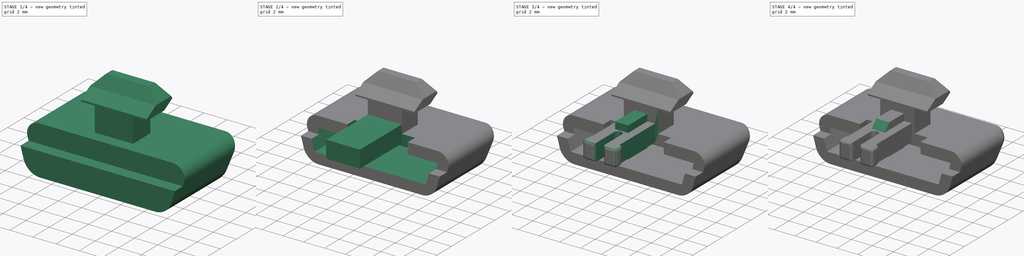
[diagram: build sequence overview — one tinted view per stage of 4, left to right]
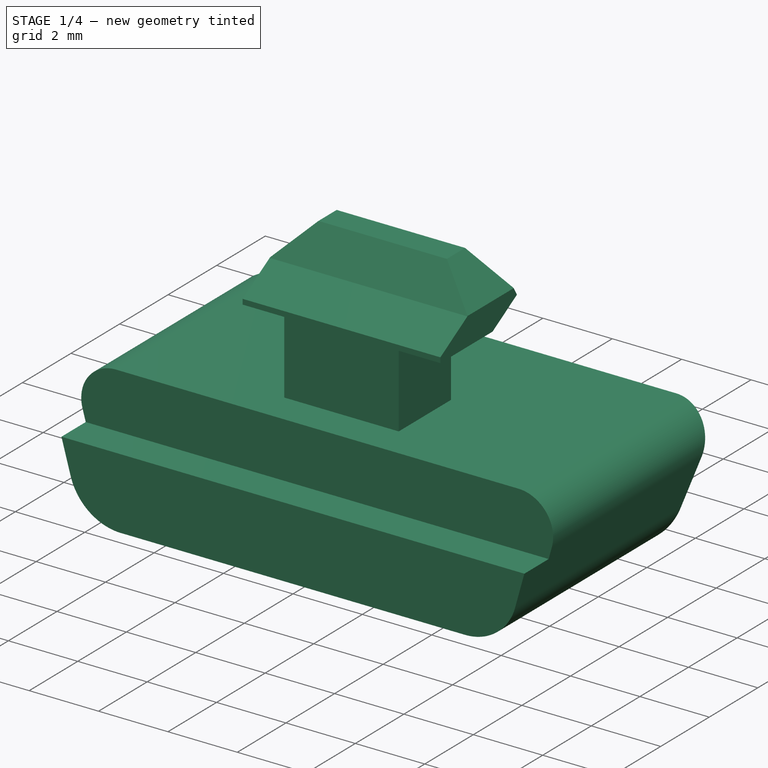
[diagram: stage 1 of 4 — iso view after this stage's code; geometry added in this stage tinted green]
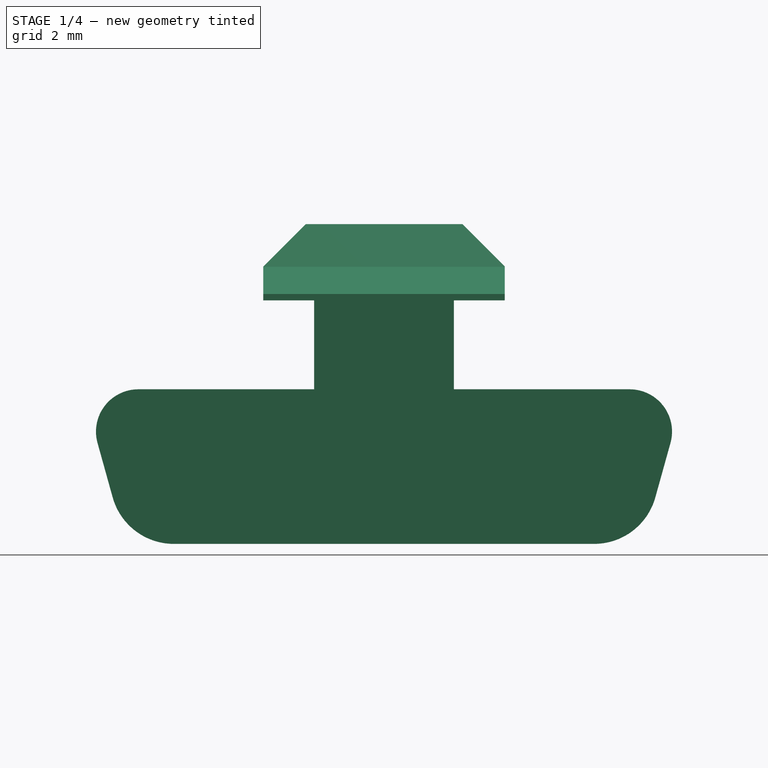
[diagram: stage 1 of 4 — front view after this stage's code; geometry added in this stage tinted green]
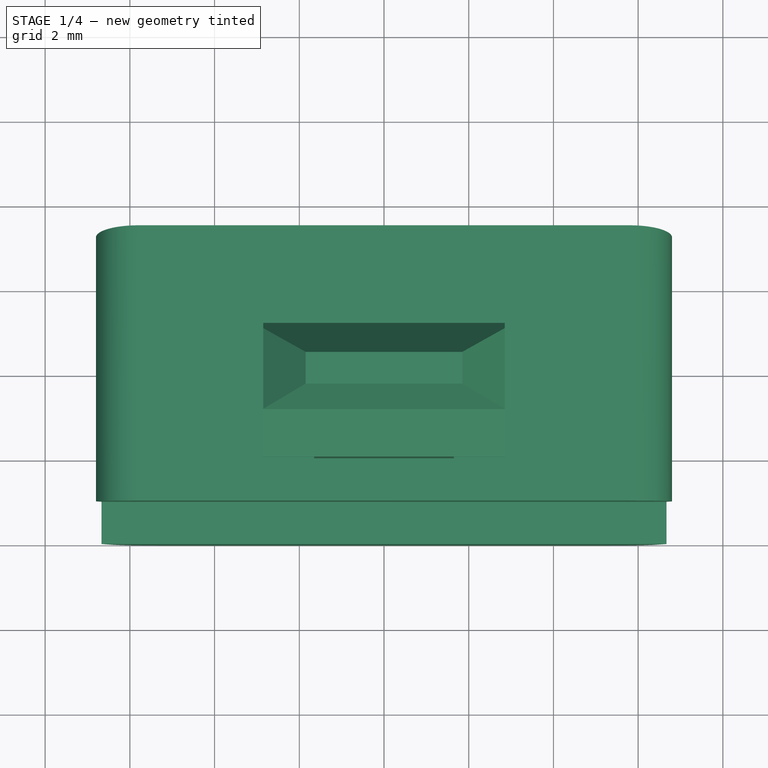
[diagram: stage 1 of 4 — top view after this stage's code; geometry added in this stage tinted green]
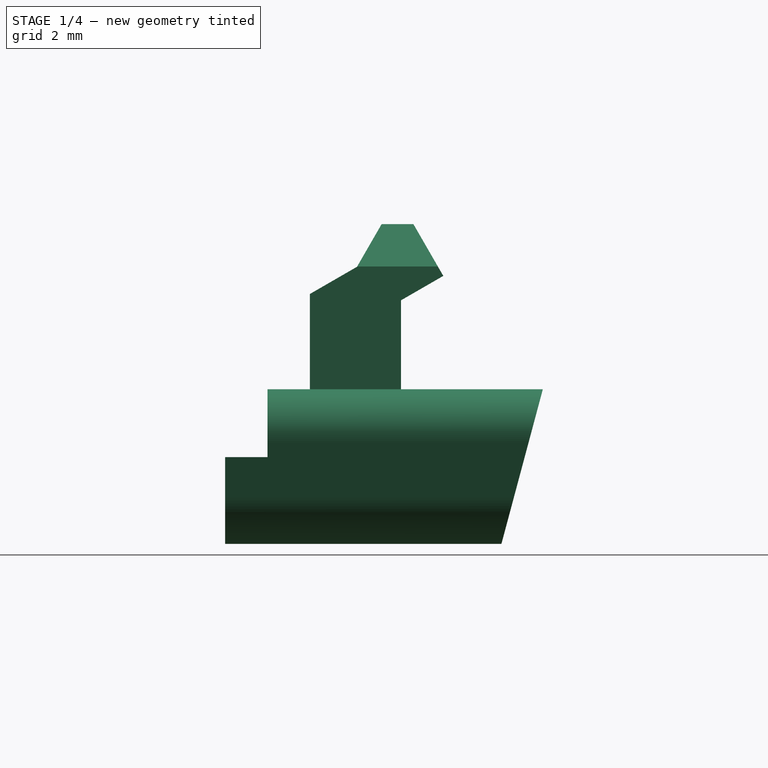
[diagram: stage 1 of 4 — right view after this stage's code; geometry added in this stage tinted green]
FCSTD DOCUMENT  (FreeCAD 1.0R39109 (Git))
Label: Philips 3000
License: All rights reserved
LicenseURL: http://en.wikipedia.org/wiki/All_rights_reserved
objects: Sketcher::SketchObject×7, PartDesign::Pocket×4, PartDesign::Pad×3, PartDesign::Fillet×2, PartDesign::Chamfer×1, PartDesign::Body×1
note: 45 computed .brp shape members not serialized (recipe doc carries the construction recipe); baked Part::Feature solids carry a one-line shape summary decoded from their .brp

FEATURE [Sketcher::SketchObject] Sketch
  ArcFitTolerance = 1e-06
  AttachmentSupport = -> [XZ_Plane]
  FullyConstrained = true
  MakeInternals = false
  MapMode = 5
  Placement = pos=(0,0,0) rot=(1,0,0;1.5708rad)
  sketch-geometry (24):
    g0: LineSegment StartX=-1.65 StartY=0 StartZ=0 EndX=-1.65 EndY=2.1 EndZ=0
    g1: LineSegment StartX=-1.65 StartY=2.1 StartZ=0 EndX=-2.85 EndY=2.1 EndZ=0
    g2: LineSegment StartX=-2.85 StartY=2.1 StartZ=0 EndX=-2.85 EndY=2.9 EndZ=0
    g3: LineSegment StartX=-2.85 StartY=2.9 StartZ=0 EndX=-1.85 EndY=3.9 EndZ=0
    g4: LineSegment StartX=-1.85 StartY=3.9 StartZ=0 EndX=1.85 EndY=3.9 EndZ=0
    g5: LineSegment StartX=1.85 StartY=3.9 StartZ=0 EndX=2.85 EndY=2.9 EndZ=0
    g6: LineSegment StartX=2.85 StartY=2.9 StartZ=0 EndX=2.85 EndY=2.1 EndZ=0
    g7: LineSegment StartX=2.85 StartY=2.1 StartZ=0 EndX=1.65 EndY=2.1 EndZ=0
    g8: LineSegment StartX=1.65 StartY=2.1 StartZ=0 EndX=1.65 EndY=0 EndZ=0
    g9: LineSegment StartX=1.65 StartY=0 StartZ=0 EndX=5.8 EndY=0 EndZ=0
    g10: LineSegment StartX=6.76333 StartY=-1.2683 StartZ=0 EndX=6.40568 EndY=-2.55245 EndZ=0
    g11: LineSegment StartX=4.96068 StartY=-3.65 StartZ=0 EndX=-4.96068 EndY=-3.65 EndZ=0
    g12: LineSegment StartX=-6.40568 StartY=-2.55245 StartZ=0 EndX=-6.76333 EndY=-1.2683 EndZ=0
    g13: LineSegment StartX=-5.8 StartY=0 StartZ=0 EndX=-1.65 EndY=0 EndZ=0
    g14: ArcOfCircle CenterX=-5.8 CenterY=-1 CenterZ=0 NormalX=0 NormalY=0 NormalZ=1 AngleXU=0 Radius=1 StartAngle=1.5708 EndAngle=3.41322
    g15: GeomPoint [constr] X=-7.11657 Y=0 Z=0
    g16: ArcOfCircle CenterX=5.8 CenterY=-1 CenterZ=0 NormalX=0 NormalY=0 NormalZ=1 AngleXU=0 Radius=1 StartAngle=6.01156 EndAngle=7.85398
    g17: GeomPoint [constr] X=7.11657 Y=0 Z=0
    g18: ArcOfCircle CenterX=4.96068 CenterY=-2.15 CenterZ=0 NormalX=0 NormalY=0 NormalZ=1 AngleXU=0 Radius=1.5 StartAngle=4.71239 EndAngle=6.01156
    g19: GeomPoint [constr] X=6.1 Y=-3.65 Z=0
    g20: ArcOfCircle CenterX=-4.96068 CenterY=-2.15 CenterZ=0 NormalX=0 NormalY=0 NormalZ=1 AngleXU=0 Radius=1.5 StartAngle=3.41322 EndAngle=4.71239
    g21: GeomPoint [constr] X=-6.1 Y=-3.65 Z=0
    g22: LineSegment [constr] StartX=-6.8 StartY=0 StartZ=0 EndX=-6.8 EndY=-3.65 EndZ=0
    g23: LineSegment [constr] StartX=6.8 StartY=0 StartZ=0 EndX=6.8 EndY=-3.65 EndZ=0
  constraints (63):
    c: Coincident(g0,g1)
    c: Horizontal(g1)
    c: Coincident(g1,g2)
    c: Coincident(g2,g3)
    c: Coincident(g3,g4)
    c: Horizontal(g4)
    c: Coincident(g4,g5)
    c: Coincident(g5,g6)
    c: Coincident(g6,g7)
    c: Coincident(g7,g8)
    c: Coincident(g8,g9)
    c: Coincident(g13,g0)
    c: Horizontal(g13)
    c: Horizontal(g7)
    c: Vertical(g0)
    c: Vertical(g8)
    c: Vertical(g6)
    c: Vertical(g2)
    c: Symmetric(g0,g8,g-2)
    c: Symmetric(g15,g17,g-2)
    c: Symmetric(g21,g19,g-2)
    c: PointOnObject(g-1,g13)
    c: Equal(g0,g8)
    c: Equal(g7,g1)
    c: Equal(g2,g6)
    c: Equal(g5,g3)
    c: DistanceY(g5,g5) = 1
    c: Perpendicular(g5,g3)
    c: Distance(g6,g2) = 5.7
    c: Distance(g0,g8) = 3.3
    c: DistanceY(g8,g8) = 2.1
    c: Distance(g4,g9) = 3.9
    c: DistanceX(g21,g19) = 12.2
    c: Distance(g9,g11) = 3.65
    c: PointOnObject(g15,g12)
    c: PointOnObject(g15,g13)
    c: Tangent(g12,g14) = 1.5708
    c: Tangent(g13,g14) = 1.5708
    c: PointOnObject(g17,g9)
    c: PointOnObject(g17,g10)
    c: Tangent(g9,g16) = 1.5708
    c: Tangent(g10,g16) = 1.5708
    c: PointOnObject(g19,g10)
    c: PointOnObject(g19,g11)
    c: Tangent(g10,g18) = 1.5708
    c: Tangent(g11,g18) = 1.5708
    c: PointOnObject(g21,g11)
    c: PointOnObject(g21,g12)
    c: Tangent(g11,g20) = 1.5708
    c: Tangent(g12,g20) = 1.5708
    c: Equal(g14,g16)
    c: Equal(g18,g20)
    c: Radius(g18) = 1.5
    c: Radius(g16) = 1
    c: PointOnObject(g22,g-1)
    c: Vertical(g22)
    c: PointOnObject(g23,g-1)
    c: Vertical(g23)
    c: PointOnObject(g22,g11)
    c: PointOnObject(g23,g11)
    c: Tangent(g22,g14)
    c: Tangent(g23,g16)
    c: Distance(g23,g22) = 13.6
FEATURE [PartDesign::Pad] Pad
  Direction = (0,-1,2e-16)
  Length = 7.5
  Length2 = 10
  Placement = pos=(0,0,0) rot=(1,0,0;1.5708rad)
  Profile = -> Sketch
  ReferenceAxis = -> Sketch [N_Axis]
  Reversed = true
  Suppressed = false
  Type = 0
FEATURE [Sketcher::SketchObject] Sketch001
  ArcFitTolerance = 1e-06
  AttachmentSupport = -> [YZ_Plane]
  ExternalGeometry = -> [Pad]
  FullyConstrained = true
  MakeInternals = false
  MapMode = 5
  Placement = pos=(0,0,0) rot=(0.57735,0.57735,0.57735;2.0944rad)
  sketch-geometry (16):
    g0: LineSegment StartX=2 StartY=0 StartZ=0 EndX=2 EndY=2.25 EndZ=0
    g1: LineSegment StartX=2 StartY=2.25 StartZ=0 EndX=3.11221 EndY=2.89214 EndZ=0
    g2: LineSegment StartX=3.11221 StartY=2.89214 StartZ=0 EndX=3.6941 EndY=3.9 EndZ=0
    g3: LineSegment StartX=3.6941 StartY=3.9 StartZ=0 EndX=4.4441 EndY=3.9 EndZ=0
    g4: LineSegment StartX=4.4441 StartY=3.9 StartZ=0 EndX=5.15 EndY=2.67735 EndZ=0
    g5: LineSegment StartX=5.15 StartY=2.67735 StartZ=0 EndX=4.15 EndY=2.1 EndZ=0
    g6: LineSegment StartX=4.15 StartY=2.1 StartZ=0 EndX=4.15 EndY=0 EndZ=0
    g7: LineSegment StartX=4.15 StartY=0 StartZ=0 EndX=7.5 EndY=-1.7e-15 EndZ=0
    g8: LineSegment StartX=7.5 StartY=-1.7e-15 StartZ=0 EndX=6.52199 EndY=-3.65 EndZ=0
    g9: LineSegment StartX=6.52199 StartY=-3.65 StartZ=0 EndX=8.5 EndY=-3.65 EndZ=0
    g10: LineSegment StartX=8.5 StartY=-3.65 StartZ=0 EndX=8.5 EndY=4.9 EndZ=0
    g11: LineSegment StartX=8.5 StartY=4.9 StartZ=0 EndX=0 EndY=4.9 EndZ=0
    g12: LineSegment StartX=2 StartY=0 StartZ=0 EndX=1 EndY=0 EndZ=0
    g13: LineSegment StartX=1 StartY=0 StartZ=0 EndX=1 EndY=-1.6 EndZ=0
    g14: LineSegment StartX=1 StartY=-1.6 StartZ=0 EndX=0 EndY=-1.6 EndZ=0
    g15: LineSegment StartX=0 StartY=-1.6 StartZ=0 EndX=0 EndY=4.9 EndZ=0
  constraints (47):
    c: PointOnObject(g0,g-1)
    c: Coincident(g0,g1)
    c: Coincident(g1,g2)
    c: Coincident(g2,g3)
    c: Coincident(g3,g4)
    c: Coincident(g4,g5)
    c: Coincident(g5,g6)
    c: PointOnObject(g6,g-1)
    c: Vertical(g6)
    c: Coincident(g6,g7)
    c: Coincident(g7,g8)
    c: Coincident(g8,g9)
    c: Horizontal(g9)
    c: Coincident(g9,g10)
    c: Coincident(g10,g11)
    c: Horizontal(g11)
    c: PointOnObject(g2,g-3)
    c: Horizontal(g3)
    c: Coincident(g-4,g7)
    c: Vertical(g0)
    c: Vertical(g10)
    c: Coincident(g0,g12)
    c: PointOnObject(g12,g-1)
    c: Coincident(g12,g13)
    c: Vertical(g13)
    c: Coincident(g13,g14)
    c: PointOnObject(g14,g-2)
    c: Coincident(g14,g15)
    c: Coincident(g15,g11)
    c: Vertical(g15)
    c: Horizontal(g14)
    c: Distance(g13,g13) = 1.6
    c: Distance(g14,g14) = 1
    c: Distance(g-2,g0) = 2
    c: Distance(g6,g0) = 2.15
    c: PointOnObject(g8,g-5)
    c: Angle(g8,g10) = 0.261799
    c: Distance(g7,g10) = 1
    c: Distance(g11,g3) = 1
    c: DistanceY(g6,g6) = 2.1
    c: Angle(g10,g4) = 0.523599
    c: Perpendicular(g4,g5)
    c: Angle(g11,g2) = 1.0472
    c: Parallel(g1,g5)
    c: Distance(g4,g0) = 3.15
    c: DistanceY(g0,g0) = 2.25
    c: Distance(g3,g3) = 0.75
FEATURE [PartDesign::Pocket] Pocket
  BaseFeature = -> Pad
  Direction = (-1,0,0)
  Length = 5
  Length2 = 5
  Midplane = true
  Placement = pos=(0,0,0) rot=(1,0,0;1.5708rad)
  Profile = -> Sketch001
  ReferenceAxis = -> Sketch001 [N_Axis]
  Refine = true
  Suppressed = false
  Type = 1
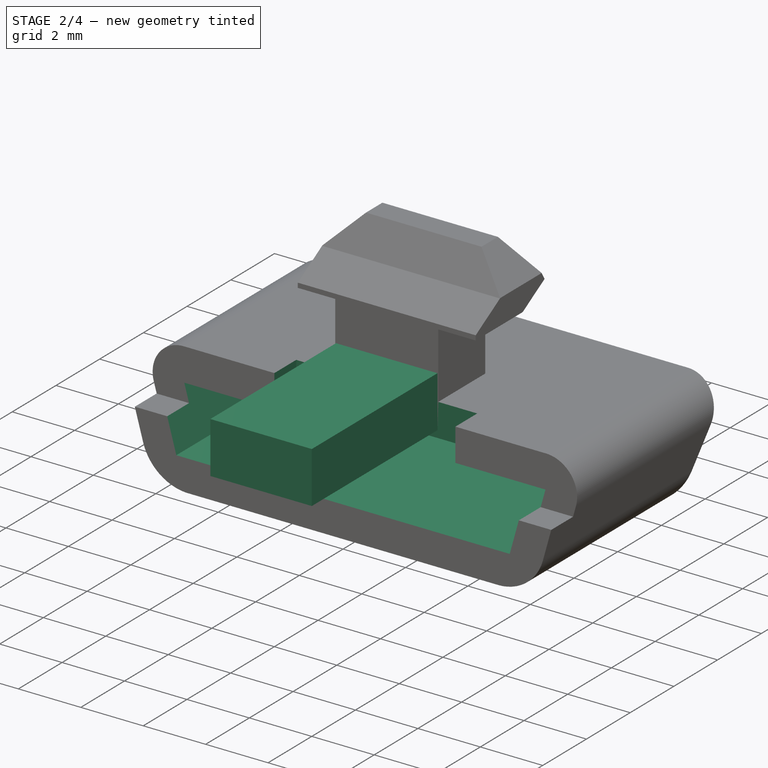
[diagram: stage 2 of 4 — iso view after this stage's code; geometry added in this stage tinted green]
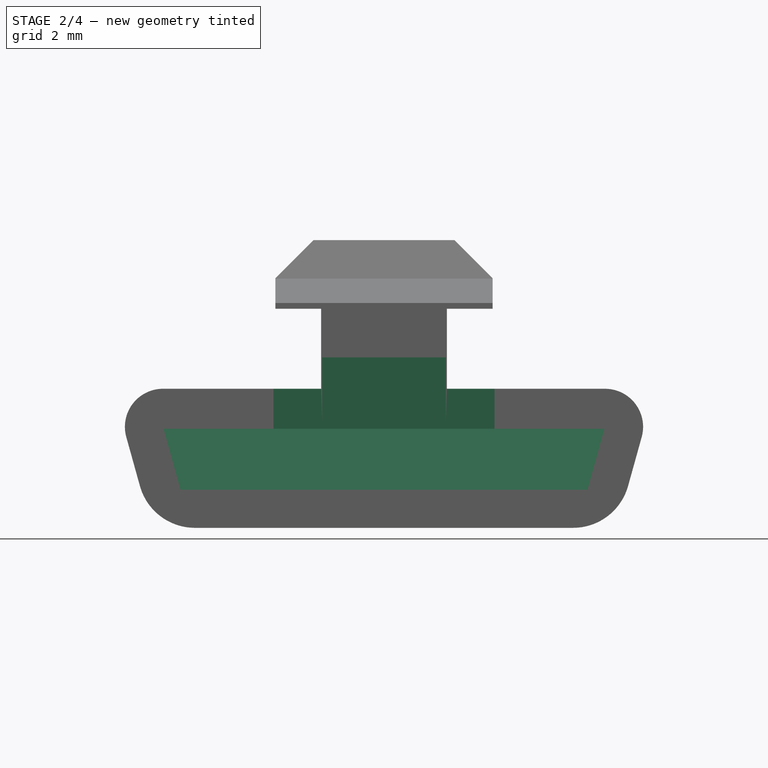
[diagram: stage 2 of 4 — front view after this stage's code; geometry added in this stage tinted green]
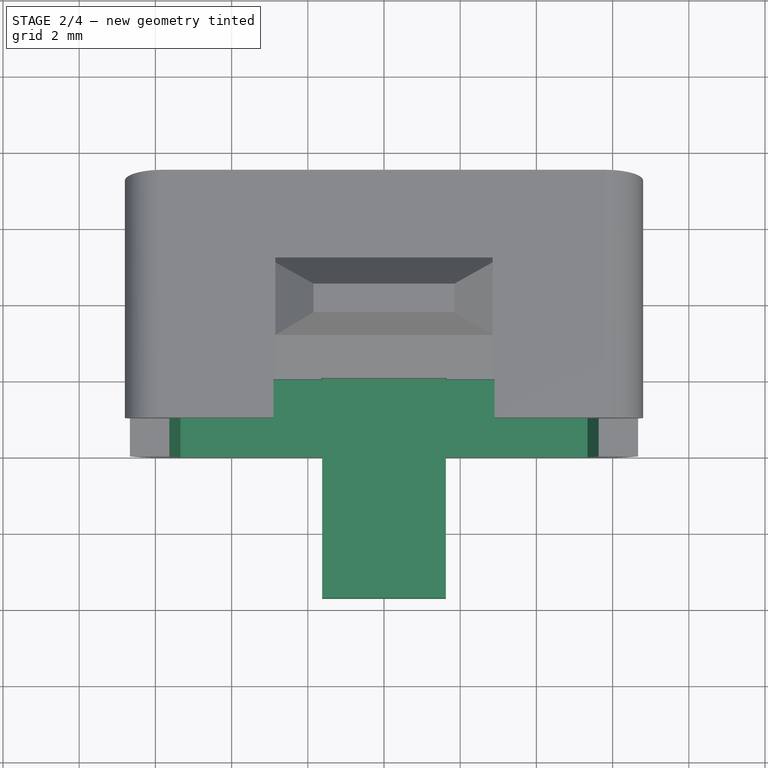
[diagram: stage 2 of 4 — top view after this stage's code; geometry added in this stage tinted green]
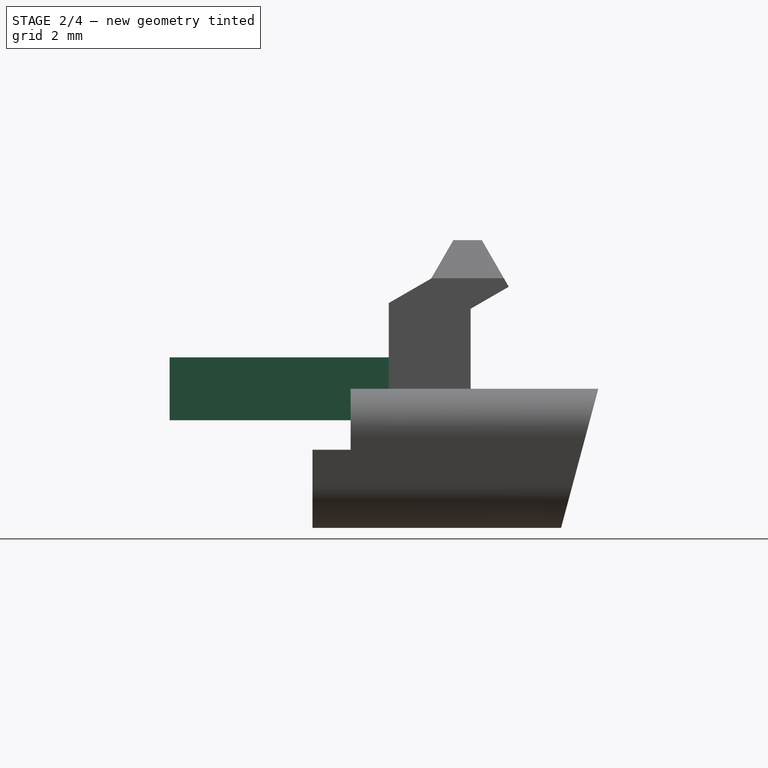
[diagram: stage 2 of 4 — right view after this stage's code; geometry added in this stage tinted green]
FEATURE [Sketcher::SketchObject] Sketch002
  ArcFitTolerance = 1e-06
  AttachmentSupport = -> [XZ_Plane]
  ExternalGeometry = -> [Pocket]
  FullyConstrained = true
  MakeInternals = false
  MapMode = 5
  Placement = pos=(0,0,0) rot=(1,0,0;1.5708rad)
  sketch-geometry (4):
    g0: LineSegment StartX=-5.78607 StartY=-1.05 StartZ=0 EndX=-5.34045 EndY=-2.65 EndZ=0
    g1: LineSegment StartX=-5.34045 StartY=-2.65 StartZ=0 EndX=5.34045 EndY=-2.65 EndZ=0
    g2: LineSegment StartX=5.34045 StartY=-2.65 StartZ=0 EndX=5.78607 EndY=-1.05 EndZ=0
    g3: LineSegment StartX=5.78607 StartY=-1.05 StartZ=0 EndX=-5.78607 EndY=-1.05 EndZ=0
  constraints (10):
    c: Coincident(g0,g1)
    c: Coincident(g1,g2)
    c: Coincident(g2,g3)
    c: Coincident(g3,g0)
    c: Symmetric(g0,g1,g-2)
    c: Symmetric(g2,g0,g-2)
    c: Parallel(g-3,g0)
    c: Distance(g-4,g1) = 1
    c: Distance(g0,g-3) = 1
    c: Distance(g3,g1) = 1.6
FEATURE [PartDesign::Pocket] Pocket001
  BaseFeature = -> Pocket
  Direction = (0,1,-2e-16)
  Length = 0
  Length2 = 5
  Offset = -1
  Placement = pos=(0,0,0) rot=(1,0,0;1.5708rad)
  Profile = -> Sketch002
  ReferenceAxis = -> Sketch002 [N_Axis]
  Suppressed = false
  Type = 3
  UpToFace = -> Pocket [Face7]
FEATURE [Sketcher::SketchObject] Sketch003
  ArcFitTolerance = 1e-06
  AttachmentSupport = -> [XY_Plane]
  FullyConstrained = true
  MakeInternals = false
  MapMode = 5
  sketch-geometry (4):
    g0: LineSegment StartX=-2.9 StartY=0 StartZ=0 EndX=2.9 EndY=0 EndZ=0
    g1: LineSegment StartX=2.9 StartY=0 StartZ=0 EndX=2.9 EndY=2 EndZ=0
    g2: LineSegment StartX=2.9 StartY=2 StartZ=0 EndX=-2.9 EndY=2 EndZ=0
    g3: LineSegment StartX=-2.9 StartY=2 StartZ=0 EndX=-2.9 EndY=0 EndZ=0
  constraints (11):
    c: Coincident(g0,g1)
    c: Coincident(g1,g2)
    c: Coincident(g2,g3)
    c: Coincident(g3,g0)
    c: Horizontal(g0)
    c: Horizontal(g2)
    c: Vertical(g1)
    c: Vertical(g3)
    c: Symmetric(g0,g0,g-1)
    c: Distance(g1,g1) = 2
    c: DistanceX(g0,g0) = 5.8
FEATURE [PartDesign::Pocket] Pocket002
  BaseFeature = -> Pocket001
  Direction = (0,0,-1)
  Length = 5
  Length2 = 5
  Placement = pos=(0,0,0) rot=(1,0,0;1.5708rad)
  Profile = -> Sketch003
  ReferenceAxis = -> Sketch003 [N_Axis]
  Refine = true
  Suppressed = false
  Type = 2
FEATURE [Sketcher::SketchObject] Sketch004
  ArcFitTolerance = 1e-06
  AttachmentSupport = -> [Pocket002]
  FullyConstrained = true
  MakeInternals = false
  MapMode = 5
  Placement = pos=(0,2,-9e-16) rot=(1,0,0;1.5708rad)
  sketch-geometry (5):
    g0: LineSegment StartX=-1.625 StartY=-0.825 StartZ=0 EndX=1.625 EndY=-0.825 EndZ=0
    g1: LineSegment StartX=1.625 StartY=-0.825 StartZ=0 EndX=1.625 EndY=0.825 EndZ=0
    g2: LineSegment StartX=1.625 StartY=0.825 StartZ=0 EndX=-1.625 EndY=0.825 EndZ=0
    g3: LineSegment StartX=-1.625 StartY=0.825 StartZ=0 EndX=-1.625 EndY=-0.825 EndZ=0
    g4: GeomPoint [constr] X=0 Y=0 Z=0
  constraints (12):
    c: Coincident(g0,g1)
    c: Coincident(g1,g2)
    c: Coincident(g2,g3)
    c: Coincident(g3,g0)
    c: Horizontal(g0)
    c: Horizontal(g2)
    c: Vertical(g1)
    c: Vertical(g3)
    c: Symmetric(g2,g0,g4)
    c: Coincident(g4,g-1)
    c: Distance(g0,g0) = 3.25
    c: Distance(g1,g1) = 1.65
FEATURE [PartDesign::Pad] Pad001
  BaseFeature = -> Pocket002
  Direction = (0,-1,2e-16)
  Length = 5.75
  Length2 = 10
  Placement = pos=(0,0,0) rot=(1,0,0;1.5708rad)
  Profile = -> Sketch004
  ReferenceAxis = -> Sketch004 [N_Axis]
  Suppressed = false
  Type = 0
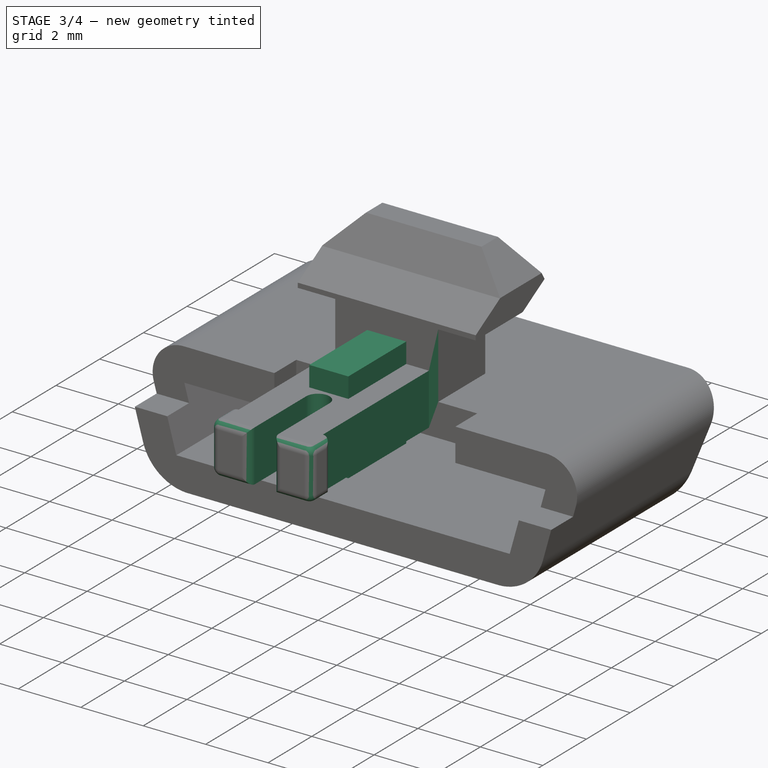
[diagram: stage 3 of 4 — iso view after this stage's code; geometry added in this stage tinted green]
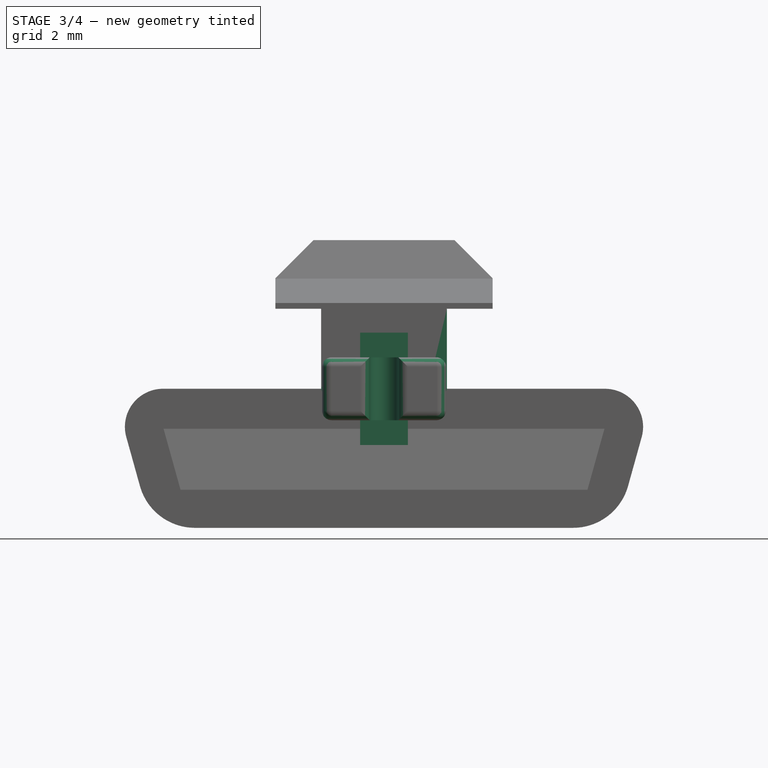
[diagram: stage 3 of 4 — front view after this stage's code; geometry added in this stage tinted green]
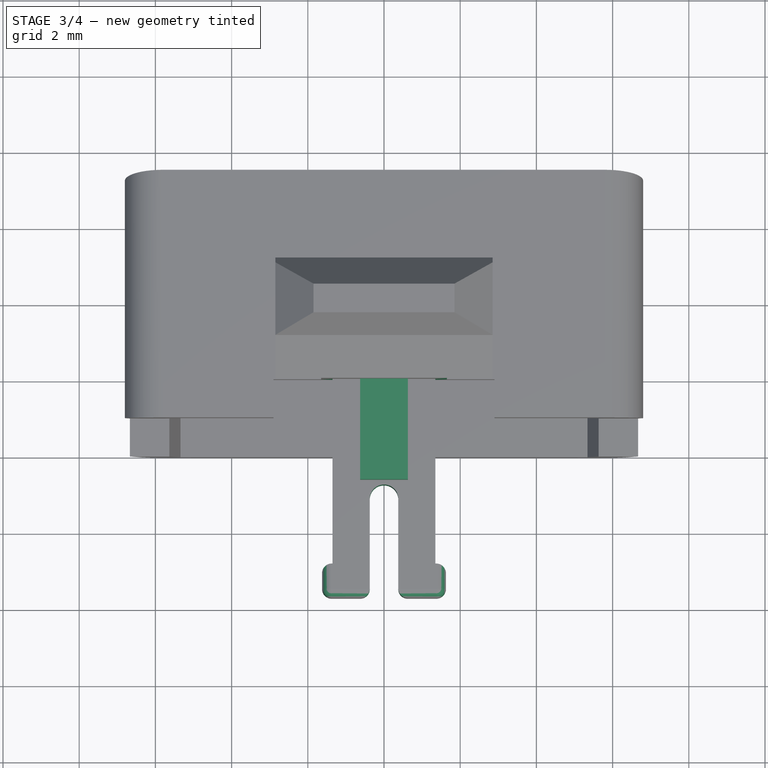
[diagram: stage 3 of 4 — top view after this stage's code; geometry added in this stage tinted green]
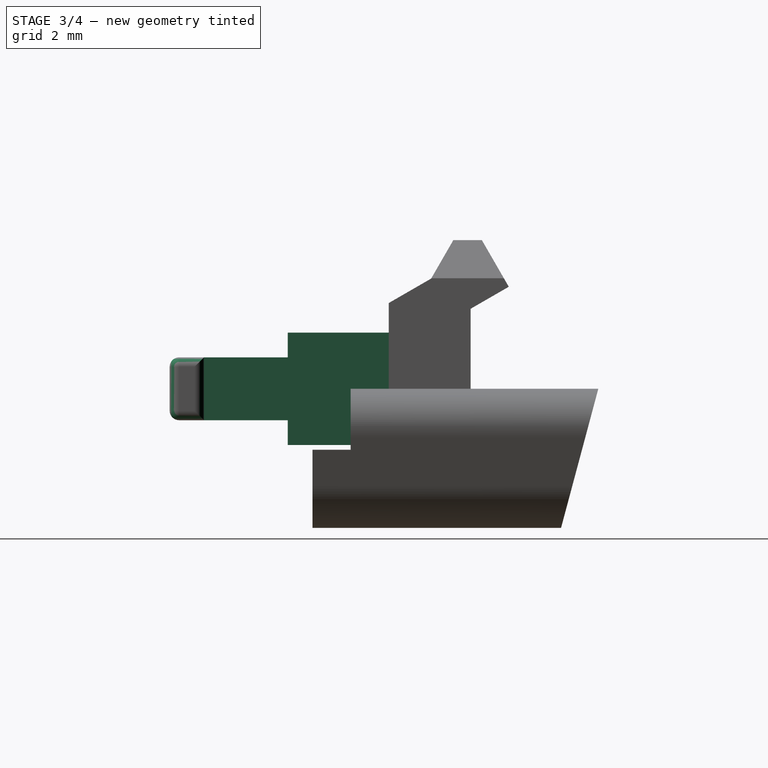
[diagram: stage 3 of 4 — right view after this stage's code; geometry added in this stage tinted green]
FEATURE [Sketcher::SketchObject] Sketch005
  ArcFitTolerance = 1e-06
  AttachmentSupport = -> [Pad001]
  FullyConstrained = true
  MakeInternals = false
  MapMode = 5
  Placement = pos=(0,2,-9e-16) rot=(1,0,0;1.5708rad)
  sketch-geometry (5):
    g0: LineSegment StartX=-0.625 StartY=1.475 StartZ=0 EndX=-0.625 EndY=-1.475 EndZ=0
    g1: LineSegment StartX=-0.625 StartY=-1.475 StartZ=0 EndX=0.625 EndY=-1.475 EndZ=0
    g2: LineSegment StartX=0.625 StartY=-1.475 StartZ=0 EndX=0.625 EndY=1.475 EndZ=0
    g3: LineSegment StartX=0.625 StartY=1.475 StartZ=0 EndX=-0.625 EndY=1.475 EndZ=0
    g4: GeomPoint [constr] X=0 Y=0 Z=0
  constraints (12):
    c: Coincident(g0,g1)
    c: Coincident(g1,g2)
    c: Coincident(g2,g3)
    c: Coincident(g3,g0)
    c: Vertical(g0)
    c: Vertical(g2)
    c: Horizontal(g1)
    c: Horizontal(g3)
    c: Symmetric(g2,g0,g4)
    c: Coincident(g4,g-1)
    c: Distance(g1,g1) = 1.25
    c: Distance(g2,g2) = 2.95
FEATURE [PartDesign::Pad] Pad002
  BaseFeature = -> Pad001
  Direction = (0,-1,2e-16)
  Length = 2.65
  Length2 = 10
  Placement = pos=(0,0,0) rot=(1,0,0;1.5708rad)
  Profile = -> Sketch005
  ReferenceAxis = -> Sketch005 [N_Axis]
  Suppressed = false
  Type = 0
FEATURE [Sketcher::SketchObject] Sketch006
  ArcFitTolerance = 1e-06
  AttachmentSupport = -> [XY_Plane]
  ExternalGeometry = -> [Pad002]
  FullyConstrained = true
  MakeInternals = false
  MapMode = 5
  sketch-geometry (12):
    g0: ArcOfCircle CenterX=0 CenterY=-1.15 CenterZ=0 NormalX=0 NormalY=0 NormalZ=1 AngleXU=0 Radius=0.375 StartAngle=4e-16 EndAngle=3.14159
    g1: ArcOfCircle CenterX=-3.02154e-11 CenterY=-3.75 CenterZ=0 NormalX=0 NormalY=0 NormalZ=1 AngleXU=0 Radius=0.375 StartAngle=3.14159 EndAngle=6.28319
    g2: LineSegment StartX=0.375 StartY=-1.15 StartZ=0 EndX=0.375 EndY=-3.75 EndZ=0
    g3: LineSegment StartX=-0.375 StartY=-1.15 StartZ=0 EndX=-0.375 EndY=-3.75 EndZ=0
    g4: LineSegment StartX=-1.625 StartY=2 StartZ=0 EndX=-1.625 EndY=-2.85 EndZ=0
    g5: LineSegment StartX=-1.625 StartY=-2.85 StartZ=0 EndX=-1.35 EndY=-2.85 EndZ=0
    g6: LineSegment StartX=-1.35 StartY=-2.85 StartZ=0 EndX=-1.35 EndY=2 EndZ=0
    g7: LineSegment StartX=-1.35 StartY=2 StartZ=0 EndX=-1.625 EndY=2 EndZ=0
    g8: LineSegment StartX=1.35 StartY=2 StartZ=0 EndX=1.35 EndY=-2.85 EndZ=0
    g9: LineSegment StartX=1.35 StartY=-2.85 StartZ=0 EndX=1.625 EndY=-2.85 EndZ=0
    g10: LineSegment StartX=1.625 StartY=-2.85 StartZ=0 EndX=1.625 EndY=2 EndZ=0
    g11: LineSegment StartX=1.625 StartY=2 StartZ=0 EndX=1.35 EndY=2 EndZ=0
  constraints (32):
    c: Tangent(g0,g2) = 1.5708
    c: Tangent(g0,g3) = -1.5708
    c: Tangent(g1,g2) = 1.5708
    c: Tangent(g1,g3) = -1.5708
    c: Equal(g0,g1)
    c: PointOnObject(g0,g-2)
    c: Vertical(g2)
    c: Radius(g0) = 0.375
    c: Distance(g0,g-3) = 0.5
    c: PointOnObject(g1,g-4)
    c: Coincident(g4,g5)
    c: Coincident(g5,g6)
    c: Coincident(g6,g7)
    c: Coincident(g7,g4)
    c: Vertical(g4)
    c: Vertical(g6)
    c: Horizontal(g5)
    c: Horizontal(g7)
    c: Coincident(g8,g9)
    c: Coincident(g9,g10)
    c: Coincident(g10,g11)
    c: Coincident(g11,g8)
    c: Vertical(g8)
    c: Vertical(g10)
    c: Horizontal(g9)
    c: Horizontal(g11)
    c: Coincident(g4,g-6)
    c: Coincident(g10,g-5)
    c: Equal(g4,g10)
    c: Equal(g11,g7)
    c: Distance(g8,g6) = 2.7
    c: DistanceY(g10,g10) = 4.85
FEATURE [PartDesign::Pocket] Pocket003
  BaseFeature = -> Pad002
  Direction = (0,0,-1)
  Length = 1.65
  Length2 = 5
  Midplane = true
  Placement = pos=(0,0,0) rot=(1,0,0;1.5708rad)
  Profile = -> Sketch006
  ReferenceAxis = -> Sketch006 [N_Axis]
  Refine = true
  Suppressed = false
  Type = 0
FEATURE [PartDesign::Fillet] Fillet
  Base = -> Pocket003 [Face48,Face44,Face49,Face43]
  BaseFeature = -> Pocket003
  Placement = pos=(0,0,0) rot=(1,0,0;1.5708rad)
  Radius = 0.25
  SupportTransform = false
  Suppressed = false
  UseAllEdges = false
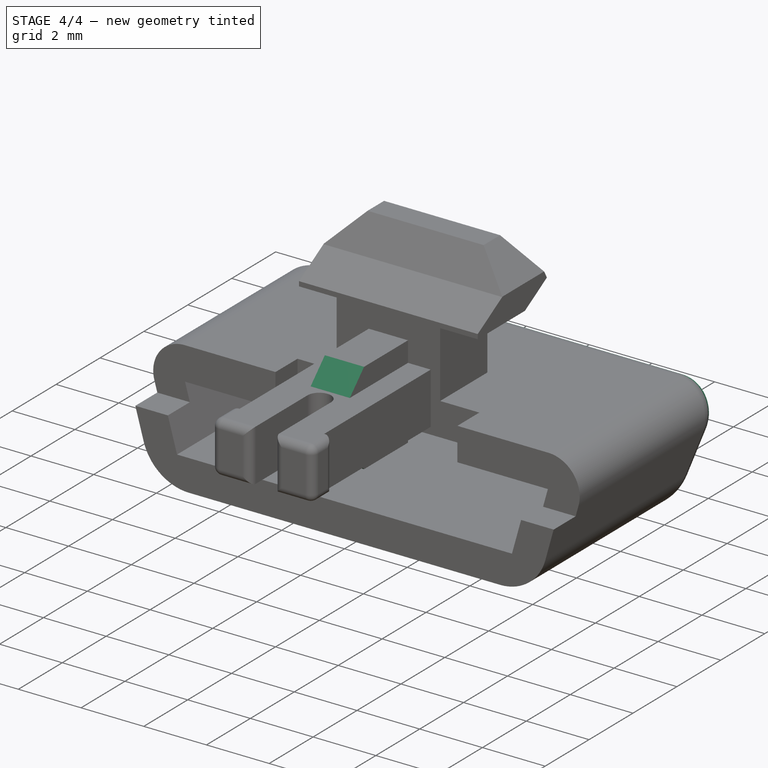
[diagram: stage 4 of 4 — iso view after this stage's code; geometry added in this stage tinted green]
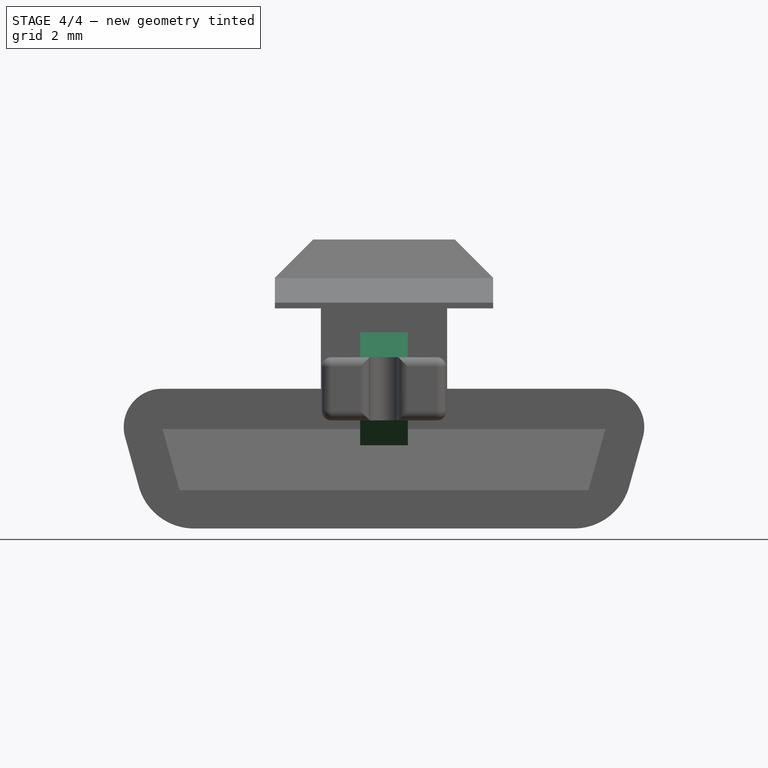
[diagram: stage 4 of 4 — front view after this stage's code; geometry added in this stage tinted green]
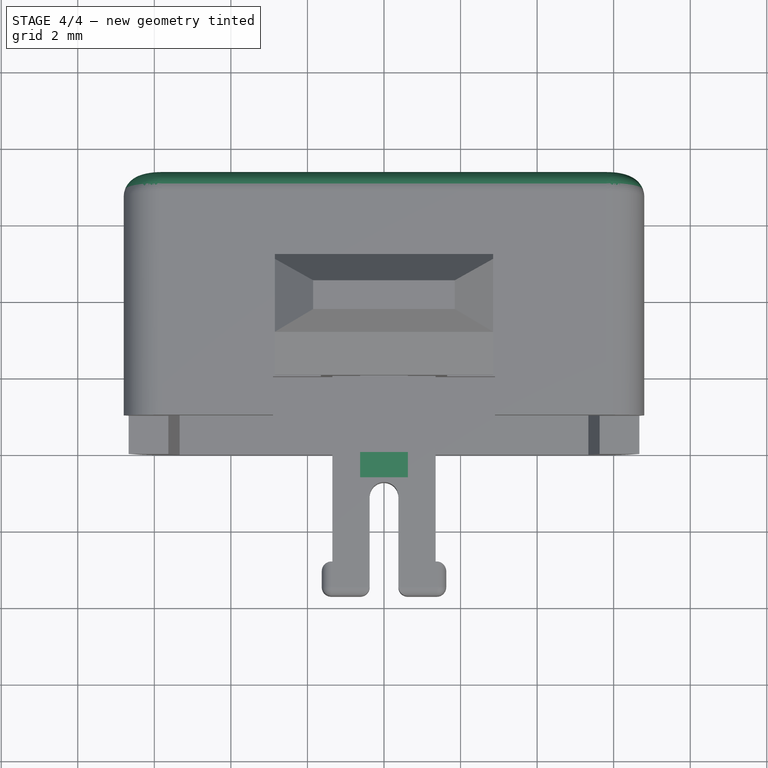
[diagram: stage 4 of 4 — top view after this stage's code; geometry added in this stage tinted green]
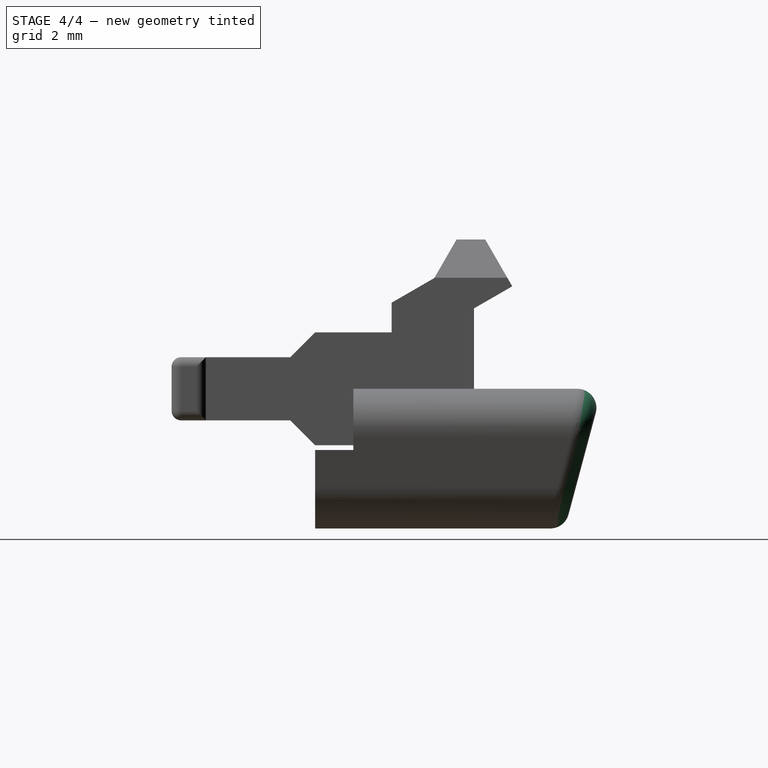
[diagram: stage 4 of 4 — right view after this stage's code; geometry added in this stage tinted green]
FEATURE [PartDesign::Fillet] Fillet001
  Base = -> Fillet [Face52]
  BaseFeature = -> Fillet
  Placement = pos=(0,0,0) rot=(1,0,0;1.5708rad)
  Radius = 0.5
  SupportTransform = false
  Suppressed = false
  UseAllEdges = false
FEATURE [PartDesign::Chamfer] Chamfer
  Angle = 45
  Base = -> Fillet001 [Edge172,Edge142]
  BaseFeature = -> Fillet001
  ChamferType = 0
  FlipDirection = false
  Placement = pos=(0,0,0) rot=(1,0,0;1.5708rad)
  Size = 0.649
  Size2 = 1
  SupportTransform = false
  Suppressed = false
  UseAllEdges = false
FEATURE [PartDesign::Body] Body  label="lock button"
  AllowCompound = false
  Group = -> [Sketch,Pad,Sketch001,Pocket,Sketch002,Pocket001,Sketch003,Pocket002,Sketch004,Pad001,Sketch005,Pad002,Sketch006,Pocket003,Fillet,Fillet001,Chamfer]
  Origin = -> Origin
  Tip = -> Chamfer
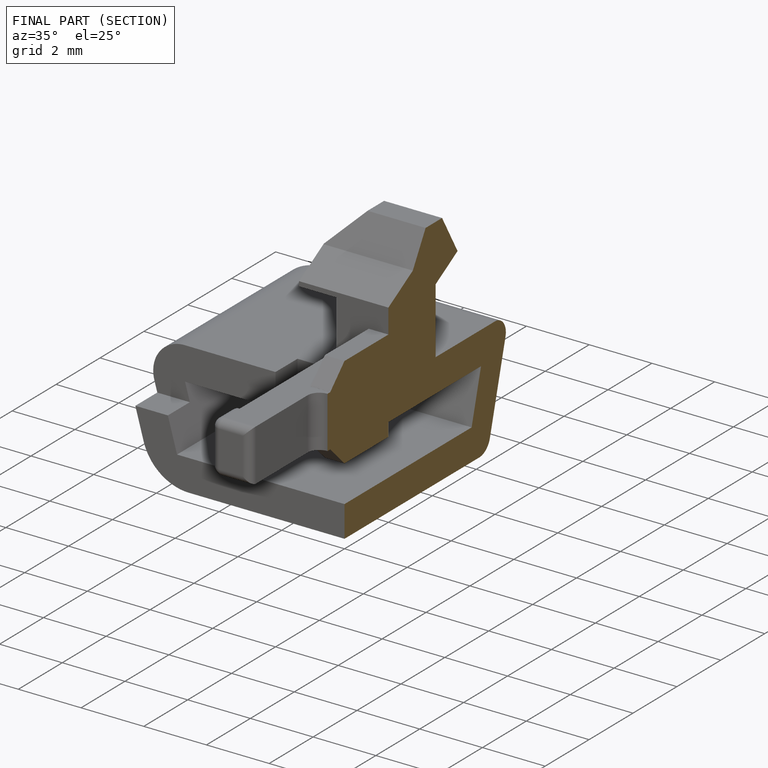
[diagram: finished part — half-section view (interior)]
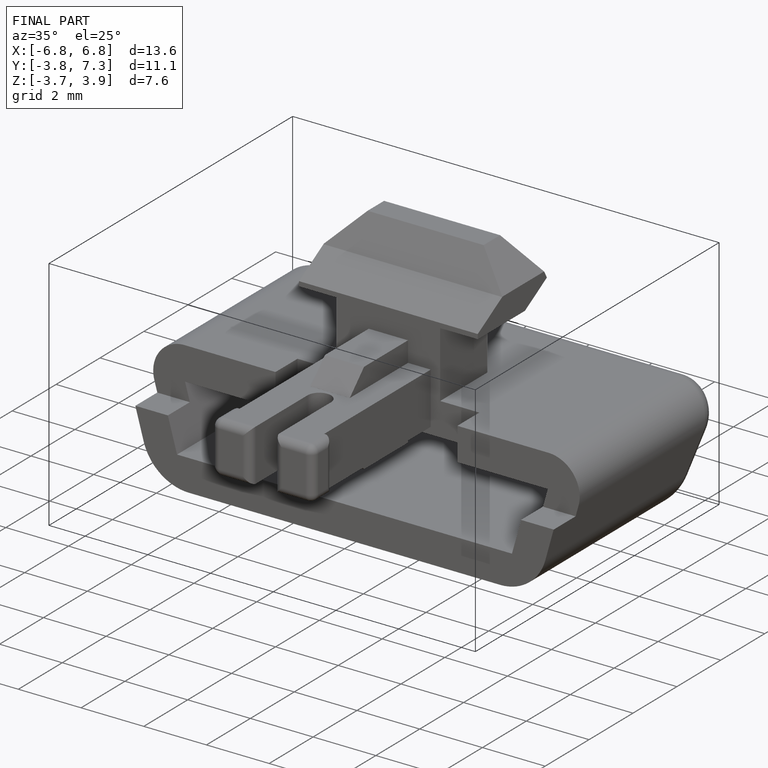
[diagram: finished part — iso view with bounding-box wireframe]
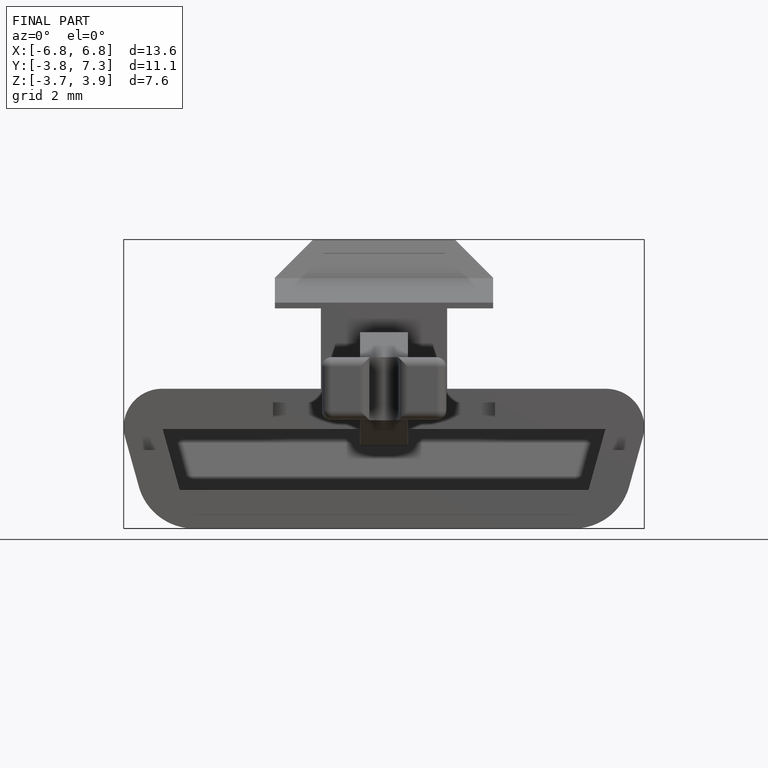
[diagram: finished part — front view with bounding-box wireframe]
